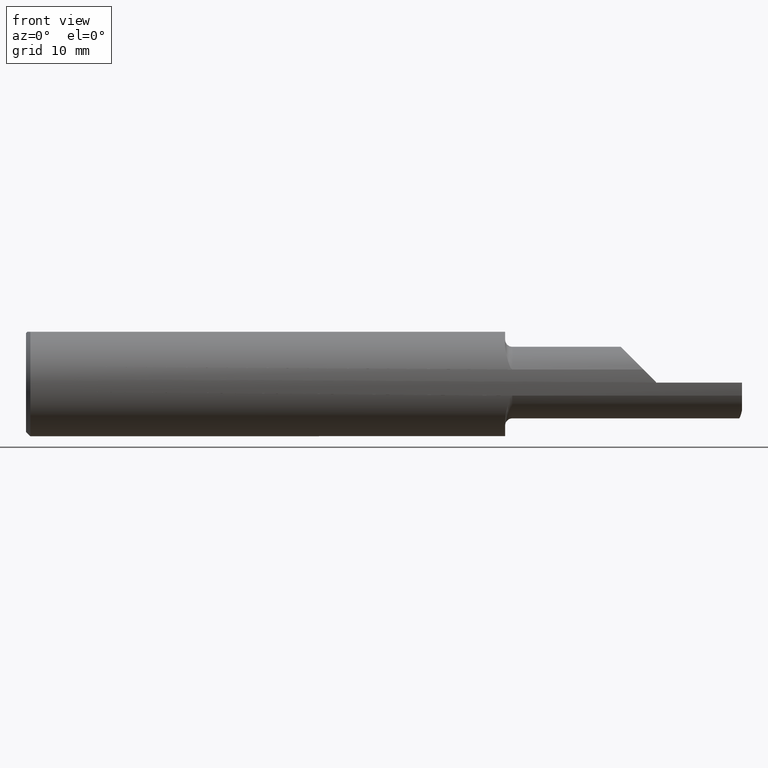
[diagram: clean part render]
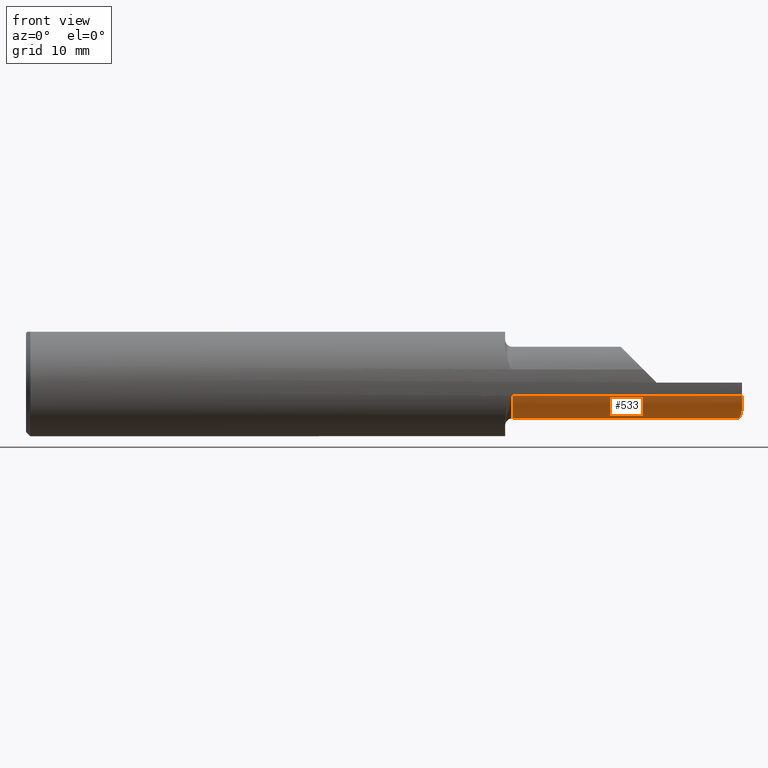
[diagram: same view with one face highlighted and labeled with its STEP entity id]
A machine part, front view. The second image highlights one B-rep face of the part: STEP entity #533.
In plain terms, the highlighted cylindrical surface (edge-blend (fillet) strip) has radius 3.175 mm, axis along (-1, -0, -0).
Its self-contained STEP definition (entity closure, byte-faithful):
#7 = CARTESIAN_POINT ( 'NONE',  ( 1.985000000000000320, -0.1816805279265493456, -0.04574066322573741572 ) ) ;
#16 = DIRECTION ( 'NONE',  ( 0.000000000000000000, 0.000000000000000000, -1.000000000000000000 ) ) ;
#60 = EDGE_CURVE ( 'NONE', #551, #63, #332, .T. ) ;
#63 = VERTEX_POINT ( 'NONE', #937 ) ;
#66 = ORIENTED_EDGE ( 'NONE', *, *, #306, .F. ) ;
#89 = AXIS2_PLACEMENT_3D ( 'NONE', #114, #268, #750 ) ;
#91 = CARTESIAN_POINT ( 'NONE',  ( 1.697999999999999954, -0.06535000000000003306, 0.000000000000000000 ) ) ;
#114 = CARTESIAN_POINT ( 'NONE',  ( 1.673000000000000265, -0.06535000000000003306, 0.000000000000000000 ) ) ;
#115 = DIRECTION ( 'NONE',  ( -1.000000000000000000, -0.000000000000000000, -0.000000000000000000 ) ) ;
#117 = ORIENTED_EDGE ( 'NONE', *, *, #210, .F. ) ;
#120 = EDGE_CURVE ( 'NONE', #63, #635, #398, .T. ) ;
#155 = DIRECTION ( 'NONE',  ( -1.000000000000000000, -0.000000000000000000, -0.000000000000000000 ) ) ;
#156 = DIRECTION ( 'NONE',  ( 1.000000000000000000, 0.000000000000000000, 0.000000000000000000 ) ) ;
#199 = CARTESIAN_POINT ( 'NONE',  ( 2.489842622564257368, -0.06535000000000003306, -0.1249999999999999861 ) ) ;
#207 = ORIENTED_EDGE ( 'NONE', *, *, #321, .F. ) ;
#210 = EDGE_CURVE ( 'NONE', #741, #635, #287, .T. ) ;
#219 = CARTESIAN_POINT ( 'NONE',  ( 2.492339414901687533, -0.09388846700596117922, -0.1250000000000000000 ) ) ;
#222 = VERTEX_POINT ( 'NONE', #519 ) ;
#236 = CARTESIAN_POINT ( 'NONE',  ( 2.489842622564257368, -0.06535000000000003306, -0.1249999999999999861 ) ) ;
#266 = ORIENTED_EDGE ( 'NONE', *, *, #269, .F. ) ;
#268 = DIRECTION ( 'NONE',  ( -1.000000000000000000, -0.000000000000000000, -0.000000000000000000 ) ) ;
#269 = EDGE_CURVE ( 'NONE', #986, #741, #768, .T. ) ;
#272 = AXIS2_PLACEMENT_3D ( 'NONE', #615, #856, #779 ) ;
#287 = LINE ( 'NONE', #671, #390 ) ;
#306 = EDGE_CURVE ( 'NONE', #222, #986, #917, .T. ) ;
#321 = EDGE_CURVE ( 'NONE', #551, #222, #710, .T. ) ;
#332 = LINE ( 'NONE', #7, #349 ) ;
#343 = EDGE_LOOP ( 'NONE', ( #117, #266, #66, #207, #875, #369 ) ) ;
#349 = VECTOR ( 'NONE', #864, 39.37007874015748143 ) ;
#369 = ORIENTED_EDGE ( 'NONE', *, *, #120, .T. ) ;
#390 = VECTOR ( 'NONE', #115, 39.37007874015748143 ) ;
#398 = CIRCLE ( 'NONE', #479, 0.1249999999999999584 ) ;
#439 = FACE_OUTER_BOUND ( 'NONE', #343, .T. ) ;
#458 = CARTESIAN_POINT ( 'NONE',  ( 2.500000000000000000, -0.06535000000000003306, -0.1249999999999999861 ) ) ;
#479 = AXIS2_PLACEMENT_3D ( 'NONE', #91, #156, #16 ) ;
#519 = CARTESIAN_POINT ( 'NONE',  ( 2.500000000000000000, -0.1431654907182394187, -0.09782509598400397632 ) ) ;
#533 = ADVANCED_FACE ( 'NONE', ( #439 ), #988, .T. ) ;
#544 = CARTESIAN_POINT ( 'NONE',  ( 1.697999999999999954, -0.06535000000000000531, -0.1249999999999999584 ) ) ;
#551 = VERTEX_POINT ( 'NONE', #972 ) ;
#615 = CARTESIAN_POINT ( 'NONE',  ( 2.500000000000000000, -0.06535000000000003306, 0.000000000000000000 ) ) ;
#635 = VERTEX_POINT ( 'NONE', #544 ) ;
#671 = CARTESIAN_POINT ( 'NONE',  ( 1.673000000000000265, -0.06535000000000000531, -0.1249999999999999584 ) ) ;
#710 = CIRCLE ( 'NONE', #272, 0.1250000000000000000 ) ;
#741 = VERTEX_POINT ( 'NONE', #839 ) ;
#750 = DIRECTION ( 'NONE',  ( 0.000000000000000000, 0.000000000000000000, 1.000000000000000000 ) ) ;
#768 = LINE ( 'NONE', #458, #801 ) ;
#779 = DIRECTION ( 'NONE',  ( 0.000000000000000000, 0.000000000000000000, 1.000000000000000000 ) ) ;
#801 = VECTOR ( 'NONE', #155, 39.37007874015748143 ) ;
#839 = CARTESIAN_POINT ( 'NONE',  ( 2.311504986094757630, -0.06535000000000003306, -0.1249999999999999861 ) ) ;
#856 = DIRECTION ( 'NONE',  ( 1.000000000000000000, -0.000000000000000000, -0.000000000000000000 ) ) ;
#864 = DIRECTION ( 'NONE',  ( -1.000000000000000000, -0.000000000000000000, -0.000000000000000000 ) ) ;
#875 = ORIENTED_EDGE ( 'NONE', *, *, #60, .T. ) ;
#917 =( BOUNDED_CURVE ( )  B_SPLINE_CURVE ( 3, ( #921, #932, #219, #236 ),
 .UNSPECIFIED., .F., .T. ) 
 B_SPLINE_CURVE_WITH_KNOTS ( ( 4, 4 ),
 ( 4.993931103440154118, 5.665894734938331290 ),
 .UNSPECIFIED. ) 
 CURVE ( )  GEOMETRIC_REPRESENTATION_ITEM ( )  RATIONAL_B_SPLINE_CURVE ( ( 1.000000000000000000, 0.9627247091652257893, 0.9627247091652257893, 1.000000000000000000 ) ) 
 REPRESENTATION_ITEM ( '' )  );
#921 = CARTESIAN_POINT ( 'NONE',  ( 2.500000000000000000, -0.1431654907182394187, -0.09782509598400397632 ) ) ;
#932 = CARTESIAN_POINT ( 'NONE',  ( 2.495856300306567466, -0.1208312645254836365, -0.1155909744993251775 ) ) ;
#937 = CARTESIAN_POINT ( 'NONE',  ( 1.697999999999999954, -0.1816805279265493456, -0.04574066322573741572 ) ) ;
#972 = CARTESIAN_POINT ( 'NONE',  ( 2.500000000000000000, -0.1816805279265493456, -0.04574066322573741572 ) ) ;
#986 = VERTEX_POINT ( 'NONE', #199 ) ;
#988 = CYLINDRICAL_SURFACE ( 'NONE', #89, 0.1249999999999999584 ) ;